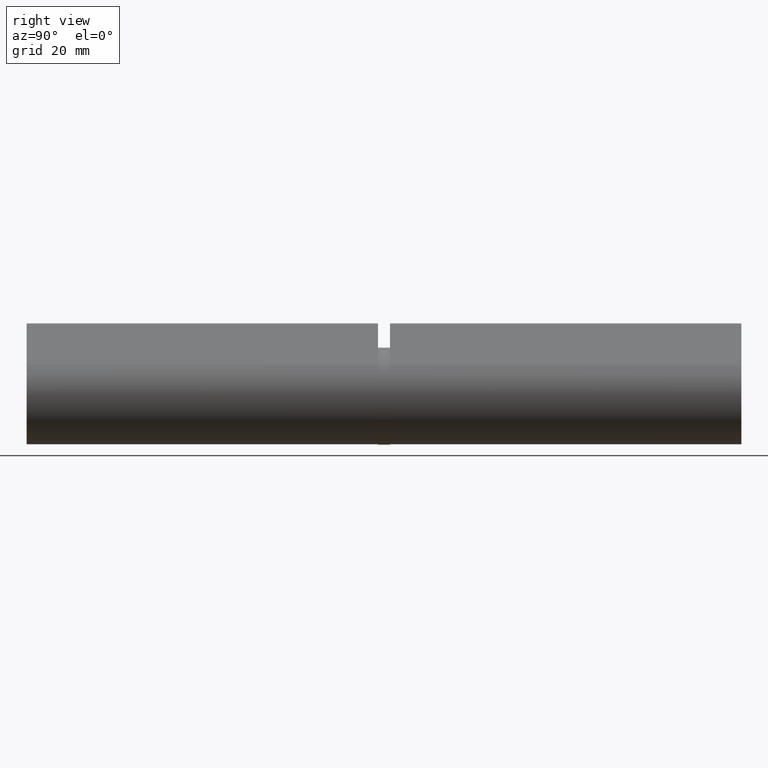
[diagram: clean part render]
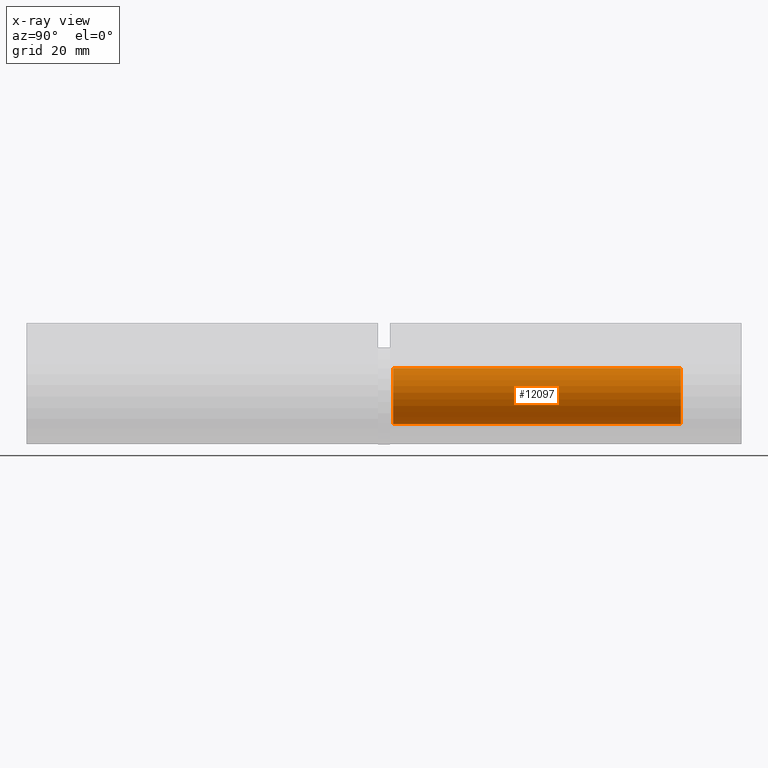
[diagram: x-ray — body ghosted, one internal face saturated and labeled with its STEP entity id]
A machine part, right view, then the same camera in x-ray: the body is ghosted and one INTERNAL B-rep face — a face not visible from any outside direction — is saturated and labeled: STEP entity #12097.
In plain terms, the highlighted cylindrical surface (bore or boss wall) has radius 4.625 mm, axis along (0, -1, 0).
Its self-contained STEP definition (entity closure, byte-faithful):
#399 = ORIENTED_EDGE ( 'NONE', *, *, #10217, .F. ) ;
#578 = CARTESIAN_POINT ( 'NONE',  ( 0.000000000000000000, 28.50000000000001421, 4.625000000000000000 ) ) ;
#651 = EDGE_LOOP ( 'NONE', ( #399 ) ) ;
#813 = CARTESIAN_POINT ( 'NONE',  ( 0.000000000000000000, -19.00000000000000000, 0.000000000000000000 ) ) ;
#1327 = AXIS2_PLACEMENT_3D ( 'NONE', #5851, #12982, #5769 ) ;
#1475 = CYLINDRICAL_SURFACE ( 'NONE', #1327, 4.625000000000000000 ) ;
#1859 = DIRECTION ( 'NONE',  ( 0.000000000000000000, 0.000000000000000000, 1.000000000000000000 ) ) ;
#2256 = FACE_OUTER_BOUND ( 'NONE', #651, .T. ) ;
#2569 = VERTEX_POINT ( 'NONE', #6708 ) ;
#3063 = FACE_OUTER_BOUND ( 'NONE', #8798, .T. ) ;
#5761 = AXIS2_PLACEMENT_3D ( 'NONE', #813, #6805, #10033 ) ;
#5769 = DIRECTION ( 'NONE',  ( 0.000000000000000000, 0.000000000000000000, 1.000000000000000000 ) ) ;
#5851 = CARTESIAN_POINT ( 'NONE',  ( 0.000000000000000000, -19.00000000000000000, 0.000000000000000000 ) ) ;
#5966 = CIRCLE ( 'NONE', #5761, 4.625000000000000000 ) ;
#6708 = CARTESIAN_POINT ( 'NONE',  ( 0.000000000000000000, -19.00000000000000000, 4.625000000000000000 ) ) ;
#6805 = DIRECTION ( 'NONE',  ( 0.000000000000000000, 1.000000000000000000, 0.000000000000000000 ) ) ;
#6884 = EDGE_CURVE ( 'NONE', #7182, #7182, #9497, .T. ) ;
#7182 = VERTEX_POINT ( 'NONE', #578 ) ;
#7962 = CARTESIAN_POINT ( 'NONE',  ( 0.000000000000000000, 28.50000000000001421, 0.000000000000000000 ) ) ;
#8798 = EDGE_LOOP ( 'NONE', ( #9932 ) ) ;
#9497 = CIRCLE ( 'NONE', #10812, 4.625000000000000000 ) ;
#9932 = ORIENTED_EDGE ( 'NONE', *, *, #6884, .T. ) ;
#10013 = DIRECTION ( 'NONE',  ( 0.000000000000000000, 1.000000000000000000, 0.000000000000000000 ) ) ;
#10033 = DIRECTION ( 'NONE',  ( 0.000000000000000000, 0.000000000000000000, 1.000000000000000000 ) ) ;
#10217 = EDGE_CURVE ( 'NONE', #2569, #2569, #5966, .T. ) ;
#10812 = AXIS2_PLACEMENT_3D ( 'NONE', #7962, #10013, #1859 ) ;
#12097 = ADVANCED_FACE ( 'NONE', ( #3063, #2256 ), #1475, .F. ) ;
#12982 = DIRECTION ( 'NONE',  ( -0.000000000000000000, 1.000000000000000000, -0.000000000000000000 ) ) ;